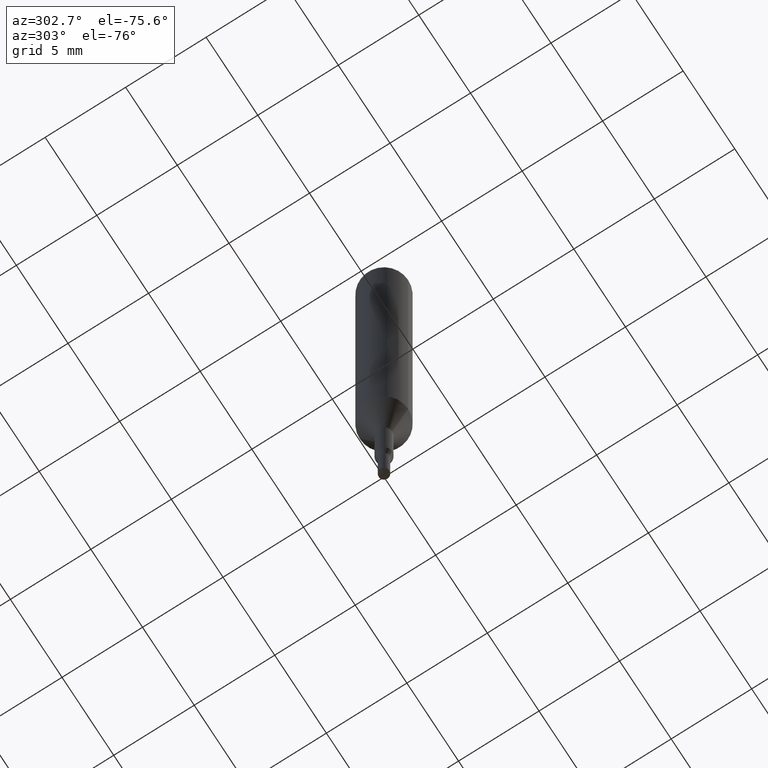
[diagram: clean part render]
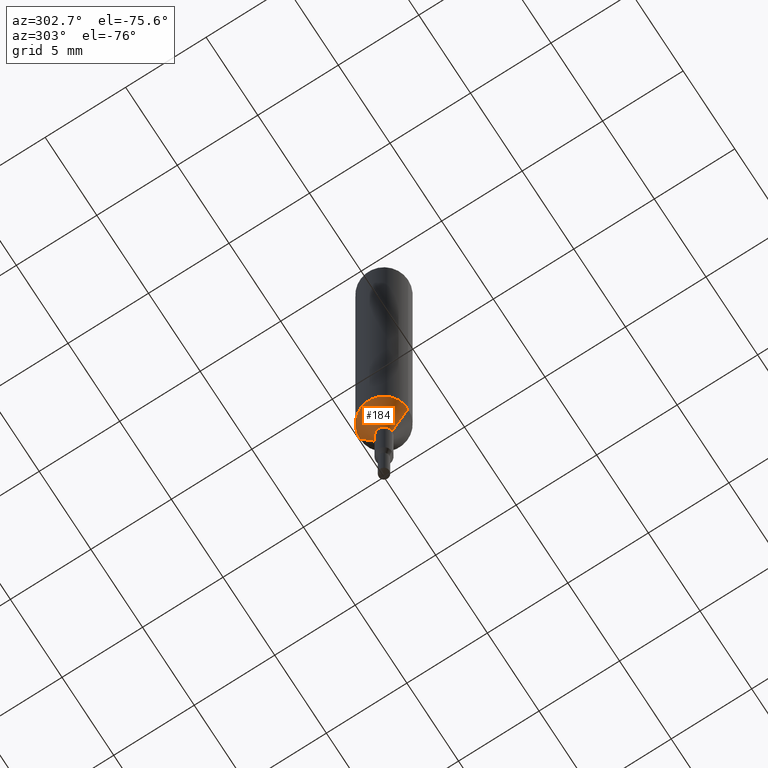
[diagram: same view with one face highlighted and labeled with its STEP entity id]
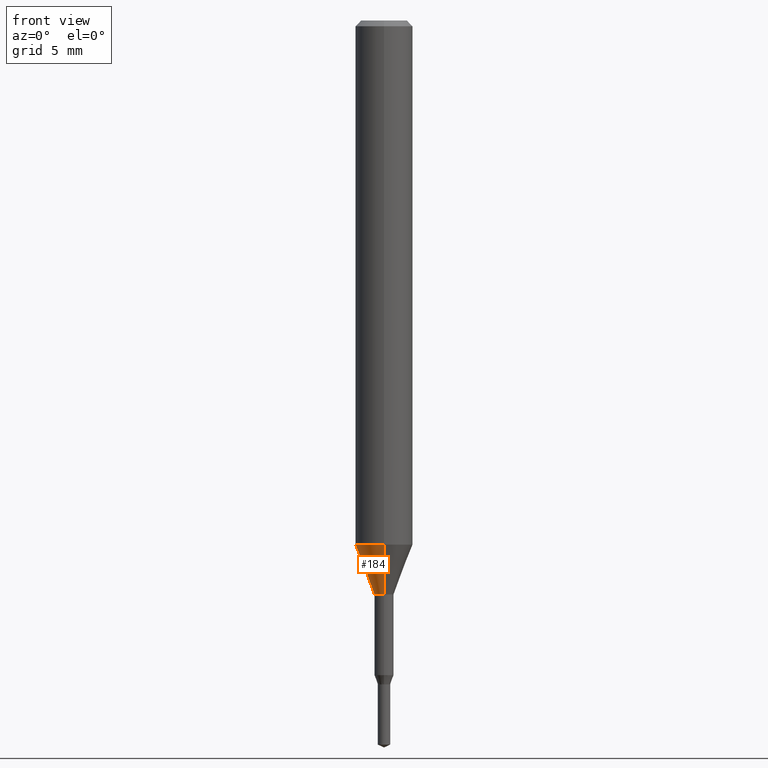
[diagram: same view with one face highlighted and labeled with its STEP entity id]
A machine part, auxiliary view. The second image highlights one B-rep face of the part: STEP entity #184.
A second angle (front view) of the same face is appended — the face is thin or edge-on in the first view.
In plain terms, the highlighted conical surface has half-angle 21.001 deg.
Its self-contained STEP definition (entity closure, byte-faithful):
#114=VERTEX_POINT('',#291);
#130=VERTEX_POINT('',#311);
#132=EDGE_CURVE('',#130,#242,#313,.T.);
#164=EDGE_CURVE('',#200,#114,#346,.T.);
#176=EDGE_CURVE('',#242,#114,#359,.T.);
#184=ADVANCED_FACE('',(#368),#369,.T.);
#200=VERTEX_POINT('',#388);
#216=EDGE_CURVE('',#200,#130,#407,.T.);
#242=VERTEX_POINT('',#436);
#291=CARTESIAN_POINT('',(0.0,0.5,-30.0));
#311=CARTESIAN_POINT('',(1.83690953073357E-016,-1.5,-27.395));
#313=CIRCLE('',#509,1.5);
#346=CIRCLE('',#552,0.5);
#359=LINE('',#572,#573);
#368=FACE_OUTER_BOUND('',#584,.T.);
#369=CONICAL_SURFACE('',#585,1.0,0.366530581623394);
#388=CARTESIAN_POINT('',(6.12303176911189E-017,-0.5,-30.0));
#407=LINE('',#630,#631);
#436=CARTESIAN_POINT('',(0.0,1.5,-27.395));
#509=AXIS2_PLACEMENT_3D('',#742,#743,#744);
#552=AXIS2_PLACEMENT_3D('',#769,#770,#771);
#572=CARTESIAN_POINT('',(-1.22460635382238E-016,1.0,-28.6975));
#573=VECTOR('',#788,1.0);
#584=EDGE_LOOP('',(#804,#805,#806,#807));
#585=AXIS2_PLACEMENT_3D('',#808,#809,#810);
#630=CARTESIAN_POINT('',(1.22460635382238E-016,-1.0,-28.6975));
#631=VECTOR('',#868,1.0);
#742=CARTESIAN_POINT('',(0.0,0.0,-27.395));
#743=DIRECTION('',(0.0,0.0,-1.0));
#744=DIRECTION('',(0.0,1.0,0.0));
#769=CARTESIAN_POINT('',(0.0,0.0,-30.0));
#770=DIRECTION('',(0.0,0.0,-1.0));
#771=DIRECTION('',(0.0,1.0,0.0));
#788=DIRECTION('',(4.38872745501645E-017,-0.35837862847256,-0.933576327171018));
#804=ORIENTED_EDGE('',*,*,#176,.T.);
#805=ORIENTED_EDGE('',*,*,#164,.F.);
#806=ORIENTED_EDGE('',*,*,#216,.T.);
#807=ORIENTED_EDGE('',*,*,#132,.T.);
#808=CARTESIAN_POINT('',(0.0,0.0,-28.6975));
#809=DIRECTION('',(-0.0,-0.0,1.0));
#810=DIRECTION('',(0.0,1.0,0.0));
#868=DIRECTION('',(4.38872745501645E-017,-0.35837862847256,0.933576327171018));